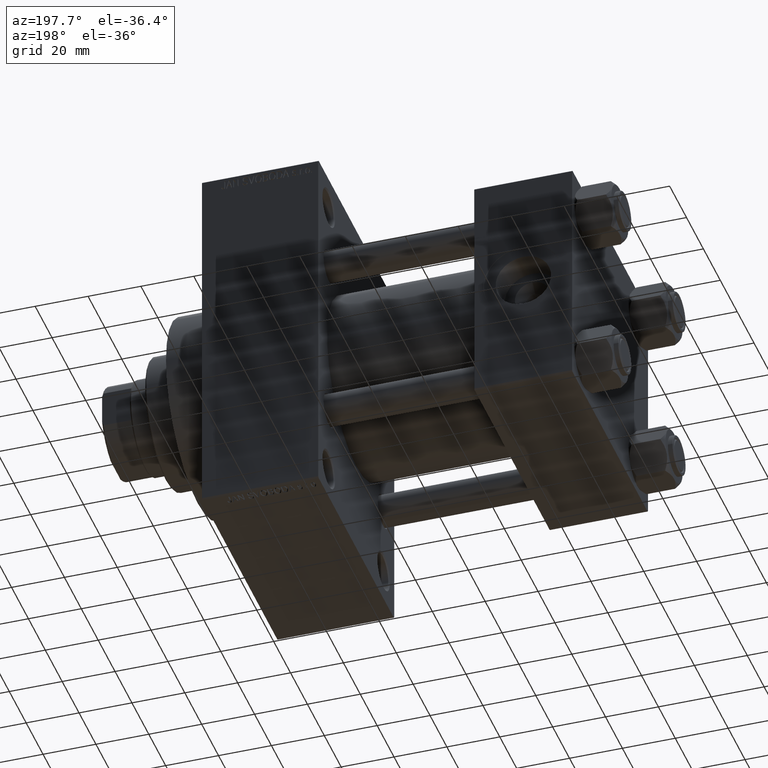
[diagram: clean part render]
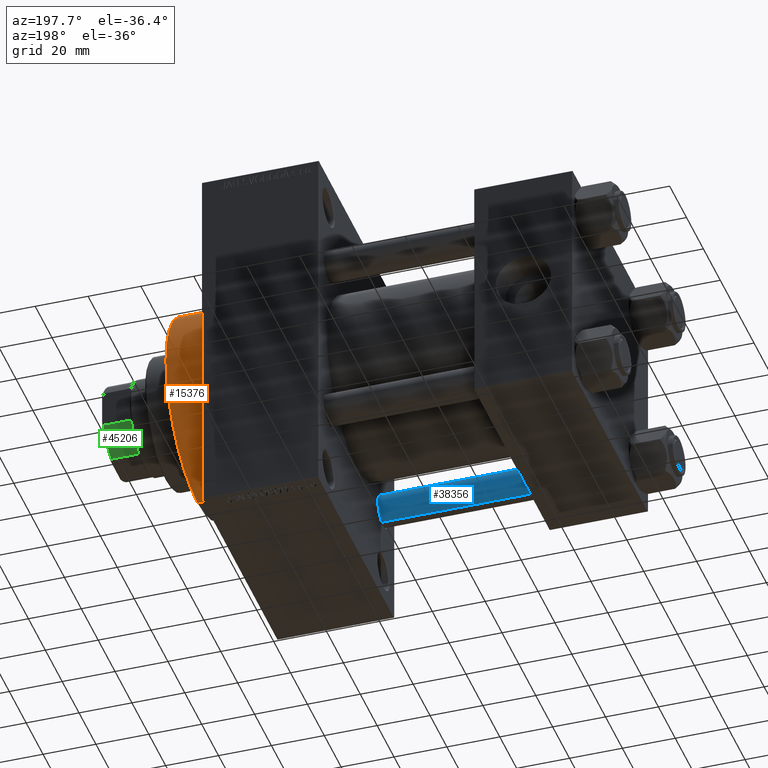
[diagram: same view with three faces highlighted in distinct colors, each labeled with its STEP entity id]
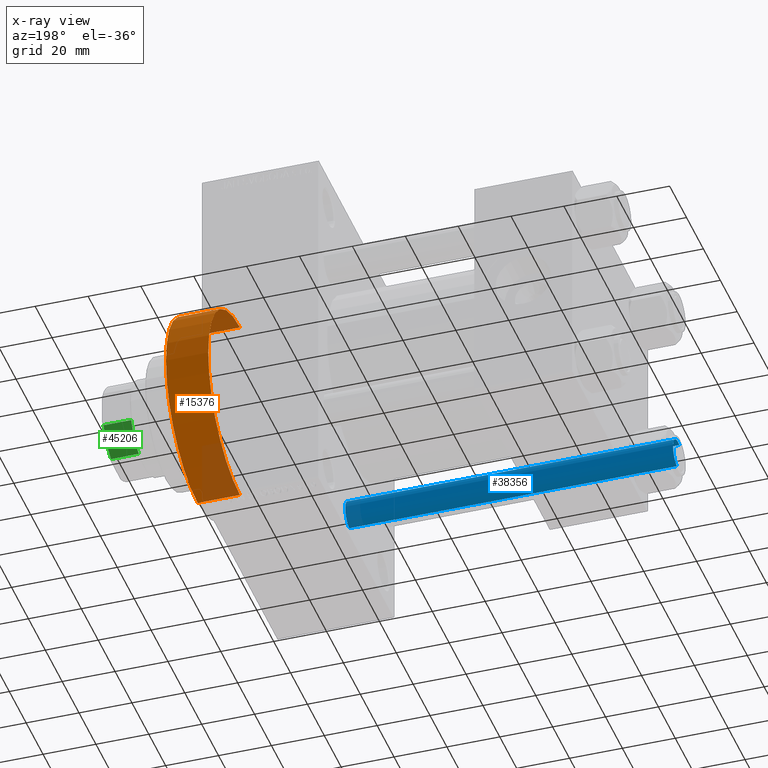
[diagram: x-ray of the same camera — body ghosted, the three highlighted faces saturated]
A machine part, auxiliary view with three faces highlighted in distinct colors.
The next image is the same camera in x-ray (body ghosted, the three faces saturated) — at least one of them is partly hidden behind the body in this view.
Their STEP definitions:

[orange] entity #15376 — the highlighted cylindrical surface (partial cylindrical patch) has radius 37.5 mm, axis along (-1, -0, -0).
#1400 = DIRECTION ( 'NONE',  ( -1.000000000000000000, -0.000000000000000000, -0.000000000000000000 ) ) ;
#1558 = ORIENTED_EDGE ( 'NONE', *, *, #19157, .F. ) ;
#3736 = FACE_OUTER_BOUND ( 'NONE', #13846, .T. ) ;
#3810 = CARTESIAN_POINT ( 'NONE',  ( 156.0000000000000284, 0.000000000000000000, 37.50000000000000711 ) ) ;
#5068 = VERTEX_POINT ( 'NONE', #40369 ) ;
#5835 = CIRCLE ( 'NONE', #22616, 37.50000000000000711 ) ;
#6279 = CARTESIAN_POINT ( 'NONE',  ( 140.0000000000000000, 0.000000000000000000, 0.000000000000000000 ) ) ;
#6836 = DIRECTION ( 'NONE',  ( -1.000000000000000000, -0.000000000000000000, -0.000000000000000000 ) ) ;
#7651 = VECTOR ( 'NONE', #1400, 1000.000000000000000 ) ;
#8148 = ORIENTED_EDGE ( 'NONE', *, *, #39528, .T. ) ;
#9336 = CARTESIAN_POINT ( 'NONE',  ( 140.0000000000000000, 4.592425496802575156E-15, -37.50000000000000711 ) ) ;
#10544 = LINE ( 'NONE', #36091, #7651 ) ;
#12725 = DIRECTION ( 'NONE',  ( 0.000000000000000000, 0.000000000000000000, -1.000000000000000000 ) ) ;
#13447 = VERTEX_POINT ( 'NONE', #16086 ) ;
#13482 = AXIS2_PLACEMENT_3D ( 'NONE', #6279, #20137, #12725 ) ;
#13619 = VECTOR ( 'NONE', #44904, 1000.000000000000000 ) ;
#13797 = VERTEX_POINT ( 'NONE', #9336 ) ;
#13846 = EDGE_LOOP ( 'NONE', ( #1558, #8148, #22455, #30009 ) ) ;
#15376 = ADVANCED_FACE ( 'NONE', ( #3736 ), #25471, .T. ) ;
#16086 = CARTESIAN_POINT ( 'NONE',  ( 140.0000000000000000, 0.000000000000000000, 37.50000000000000711 ) ) ;
#19157 = EDGE_CURVE ( 'NONE', #5068, #20284, #5835, .T. ) ;
#19582 = CARTESIAN_POINT ( 'NONE',  ( 156.0000000000000284, 0.000000000000000000, 0.000000000000000000 ) ) ;
#20068 = LINE ( 'NONE', #45837, #13619 ) ;
#20137 = DIRECTION ( 'NONE',  ( 1.000000000000000000, 0.000000000000000000, 0.000000000000000000 ) ) ;
#20284 = VERTEX_POINT ( 'NONE', #3810 ) ;
#21410 = DIRECTION ( 'NONE',  ( 0.000000000000000000, 0.000000000000000000, 1.000000000000000000 ) ) ;
#22455 = ORIENTED_EDGE ( 'NONE', *, *, #28113, .T. ) ;
#22616 = AXIS2_PLACEMENT_3D ( 'NONE', #19582, #37487, #45590 ) ;
#25471 = CYLINDRICAL_SURFACE ( 'NONE', #32451, 37.50000000000000711 ) ;
#28113 = EDGE_CURVE ( 'NONE', #13797, #13447, #34852, .T. ) ;
#30009 = ORIENTED_EDGE ( 'NONE', *, *, #35922, .F. ) ;
#32152 = CARTESIAN_POINT ( 'NONE',  ( 156.0000000000000284, 0.000000000000000000, 0.000000000000000000 ) ) ;
#32451 = AXIS2_PLACEMENT_3D ( 'NONE', #32152, #6836, #21410 ) ;
#34852 = CIRCLE ( 'NONE', #13482, 37.50000000000000711 ) ;
#35922 = EDGE_CURVE ( 'NONE', #20284, #13447, #20068, .T. ) ;
#36091 = CARTESIAN_POINT ( 'NONE',  ( 156.0000000000000284, 4.592425496802575156E-15, -37.50000000000000711 ) ) ;
#37487 = DIRECTION ( 'NONE',  ( 1.000000000000000000, 0.000000000000000000, 0.000000000000000000 ) ) ;
#39528 = EDGE_CURVE ( 'NONE', #5068, #13797, #10544, .T. ) ;
#40369 = CARTESIAN_POINT ( 'NONE',  ( 156.0000000000000284, 4.592425496802575156E-15, -37.50000000000000711 ) ) ;
#44904 = DIRECTION ( 'NONE',  ( -1.000000000000000000, -0.000000000000000000, -0.000000000000000000 ) ) ;
#45590 = DIRECTION ( 'NONE',  ( 0.000000000000000000, 0.000000000000000000, -1.000000000000000000 ) ) ;
#45837 = CARTESIAN_POINT ( 'NONE',  ( 156.0000000000000284, 0.000000000000000000, 37.50000000000000711 ) ) ;

[blue] entity #38356 — the highlighted cylindrical surface (edge-blend (fillet) strip) has radius 6 mm, axis along (-1, 0, 0).
#1490 = DIRECTION ( 'NONE',  ( -0.000000000000000000, -0.000000000000000000, 1.000000000000000000 ) ) ;
#1529 = VERTEX_POINT ( 'NONE', #5859 ) ;
#1657 = EDGE_CURVE ( 'NONE', #21189, #8514, #6330, .T. ) ;
#2289 = EDGE_CURVE ( 'NONE', #31427, #1529, #16494, .T. ) ;
#3182 = VECTOR ( 'NONE', #12676, 1000.000000000000000 ) ;
#5859 = CARTESIAN_POINT ( 'NONE',  ( 6.000000000000000888, 7.347880794884120722E-16, 0.4999999999999865663 ) ) ;
#6330 = LINE ( 'NONE', #20904, #31313 ) ;
#7357 = ORIENTED_EDGE ( 'NONE', *, *, #1657, .T. ) ;
#8514 = VERTEX_POINT ( 'NONE', #35728 ) ;
#12216 = DIRECTION ( 'NONE',  ( 1.000000000000000000, 0.000000000000000000, 0.000000000000000000 ) ) ;
#12395 = CIRCLE ( 'NONE', #22283, 6.000000000000000888 ) ;
#12676 = DIRECTION ( 'NONE',  ( -0.000000000000000000, -0.000000000000000000, -1.000000000000000000 ) ) ;
#15251 = AXIS2_PLACEMENT_3D ( 'NONE', #39301, #21409, #21648 ) ;
#15615 = ORIENTED_EDGE ( 'NONE', *, *, #2289, .F. ) ;
#16494 = LINE ( 'NONE', #26795, #3182 ) ;
#16739 = CYLINDRICAL_SURFACE ( 'NONE', #19823, 6.000000000000000888 ) ;
#19453 = CARTESIAN_POINT ( 'NONE',  ( 0.000000000000000000, 0.000000000000000000, 125.0000000000000000 ) ) ;
#19823 = AXIS2_PLACEMENT_3D ( 'NONE', #19453, #42296, #27741 ) ;
#19830 = CARTESIAN_POINT ( 'NONE',  ( 6.000000000000000888, 7.347880794884120722E-16, 124.5000000000000000 ) ) ;
#20321 = CARTESIAN_POINT ( 'NONE',  ( 0.000000000000000000, 0.000000000000000000, 0.4999999999999865663 ) ) ;
#20904 = CARTESIAN_POINT ( 'NONE',  ( -6.000000000000000888, 0.000000000000000000, 125.0000000000000000 ) ) ;
#21189 = VERTEX_POINT ( 'NONE', #21880 ) ;
#21409 = DIRECTION ( 'NONE',  ( 0.000000000000000000, 0.000000000000000000, -1.000000000000000000 ) ) ;
#21648 = DIRECTION ( 'NONE',  ( 1.000000000000000000, 0.000000000000000000, 0.000000000000000000 ) ) ;
#21880 = CARTESIAN_POINT ( 'NONE',  ( -6.000000000000000888, 0.000000000000000000, 124.5000000000000000 ) ) ;
#22283 = AXIS2_PLACEMENT_3D ( 'NONE', #20321, #1490, #12216 ) ;
#25859 = EDGE_LOOP ( 'NONE', ( #15615, #31876, #7357, #28080 ) ) ;
#26795 = CARTESIAN_POINT ( 'NONE',  ( 6.000000000000000888, 7.347880794884120722E-16, 125.0000000000000000 ) ) ;
#27741 = DIRECTION ( 'NONE',  ( -1.000000000000000000, 0.000000000000000000, 0.000000000000000000 ) ) ;
#28080 = ORIENTED_EDGE ( 'NONE', *, *, #43600, .T. ) ;
#31313 = VECTOR ( 'NONE', #35458, 1000.000000000000000 ) ;
#31427 = VERTEX_POINT ( 'NONE', #19830 ) ;
#31876 = ORIENTED_EDGE ( 'NONE', *, *, #38985, .T. ) ;
#33546 = CIRCLE ( 'NONE', #15251, 6.000000000000000888 ) ;
#35458 = DIRECTION ( 'NONE',  ( -0.000000000000000000, -0.000000000000000000, -1.000000000000000000 ) ) ;
#35728 = CARTESIAN_POINT ( 'NONE',  ( -6.000000000000000888, 0.000000000000000000, 0.4999999999999865663 ) ) ;
#38356 = ADVANCED_FACE ( 'NONE', ( #43008 ), #16739, .T. ) ;
#38985 = EDGE_CURVE ( 'NONE', #31427, #21189, #33546, .T. ) ;
#39301 = CARTESIAN_POINT ( 'NONE',  ( 0.000000000000000000, 0.000000000000000000, 124.5000000000000000 ) ) ;
#42296 = DIRECTION ( 'NONE',  ( -0.000000000000000000, -0.000000000000000000, -1.000000000000000000 ) ) ;
#43008 = FACE_OUTER_BOUND ( 'NONE', #25859, .T. ) ;
#43600 = EDGE_CURVE ( 'NONE', #8514, #1529, #12395, .T. ) ;

[green] entity #45206 — the highlighted cylindrical surface (partial cylindrical patch) has radius 17.5 mm, axis along (1, 0, 0).
#454 = ORIENTED_EDGE ( 'NONE', *, *, #42154, .T. ) ;
#1171 = ORIENTED_EDGE ( 'NONE', *, *, #40918, .T. ) ;
#1958 = DIRECTION ( 'NONE',  ( -0.000000000000000000, -0.000000000000000000, -1.000000000000000000 ) ) ;
#4008 = DIRECTION ( 'NONE',  ( -0.000000000000000000, -0.000000000000000000, 1.000000000000000000 ) ) ;
#4978 = CARTESIAN_POINT ( 'NONE',  ( -15.99999999999999645, 7.088723439378924240, 139.0000000000000000 ) ) ;
#5506 = AXIS2_PLACEMENT_3D ( 'NONE', #8630, #1958, #31077 ) ;
#6285 = CARTESIAN_POINT ( 'NONE',  ( -7.088723439378915359, 16.00000000000000000, 149.4999999999999716 ) ) ;
#7008 = CYLINDRICAL_SURFACE ( 'NONE', #10108, 17.50000000000000000 ) ;
#8630 = CARTESIAN_POINT ( 'NONE',  ( 0.000000000000000000, 0.000000000000000000, 149.4999999999999716 ) ) ;
#8831 = CARTESIAN_POINT ( 'NONE',  ( -7.088723439378916247, 16.00000000000000000, 139.0000000000000000 ) ) ;
#9215 = LINE ( 'NONE', #13985, #24502 ) ;
#10108 = AXIS2_PLACEMENT_3D ( 'NONE', #21583, #28983, #43529 ) ;
#10405 = DIRECTION ( 'NONE',  ( 1.000000000000000000, 0.000000000000000000, 0.000000000000000000 ) ) ;
#10766 = VECTOR ( 'NONE', #4008, 1000.000000000000000 ) ;
#10934 = CARTESIAN_POINT ( 'NONE',  ( -15.99999999999999645, 7.088723439378923352, -0.001000000000001000089 ) ) ;
#13985 = CARTESIAN_POINT ( 'NONE',  ( -7.088723439378915359, 16.00000000000000000, -0.001000000000001000089 ) ) ;
#14404 = FACE_OUTER_BOUND ( 'NONE', #34645, .T. ) ;
#17650 = CIRCLE ( 'NONE', #44317, 17.50000000000000000 ) ;
#20072 = VERTEX_POINT ( 'NONE', #8831 ) ;
#21583 = CARTESIAN_POINT ( 'NONE',  ( 0.000000000000000000, 0.000000000000000000, -0.001000000000001000089 ) ) ;
#24502 = VECTOR ( 'NONE', #32140, 1000.000000000000000 ) ;
#24986 = DIRECTION ( 'NONE',  ( 0.000000000000000000, 0.000000000000000000, 1.000000000000000000 ) ) ;
#25369 = CIRCLE ( 'NONE', #5506, 17.50000000000000000 ) ;
#28910 = VERTEX_POINT ( 'NONE', #6285 ) ;
#28983 = DIRECTION ( 'NONE',  ( -0.000000000000000000, -0.000000000000000000, 1.000000000000000000 ) ) ;
#31077 = DIRECTION ( 'NONE',  ( 1.000000000000000000, 1.776356839400250465E-15, 0.000000000000000000 ) ) ;
#32140 = DIRECTION ( 'NONE',  ( -0.000000000000000000, -0.000000000000000000, 1.000000000000000000 ) ) ;
#32789 = CARTESIAN_POINT ( 'NONE',  ( -15.99999999999999645, 7.088723439378923352, 149.4999999999999716 ) ) ;
#32891 = LINE ( 'NONE', #10934, #10766 ) ;
#34645 = EDGE_LOOP ( 'NONE', ( #1171, #37013, #45207, #454 ) ) ;
#36263 = VERTEX_POINT ( 'NONE', #4978 ) ;
#37013 = ORIENTED_EDGE ( 'NONE', *, *, #43622, .T. ) ;
#39533 = CARTESIAN_POINT ( 'NONE',  ( 0.000000000000000000, 0.000000000000000000, 139.0000000000000000 ) ) ;
#40918 = EDGE_CURVE ( 'NONE', #36263, #42717, #32891, .T. ) ;
#42134 = EDGE_CURVE ( 'NONE', #20072, #28910, #9215, .T. ) ;
#42154 = EDGE_CURVE ( 'NONE', #20072, #36263, #17650, .T. ) ;
#42717 = VERTEX_POINT ( 'NONE', #32789 ) ;
#43529 = DIRECTION ( 'NONE',  ( 1.000000000000000000, 0.000000000000000000, 0.000000000000000000 ) ) ;
#43622 = EDGE_CURVE ( 'NONE', #42717, #28910, #25369, .T. ) ;
#44317 = AXIS2_PLACEMENT_3D ( 'NONE', #39533, #24986, #10405 ) ;
#45206 = ADVANCED_FACE ( 'NONE', ( #14404 ), #7008, .T. ) ;
#45207 = ORIENTED_EDGE ( 'NONE', *, *, #42134, .F. ) ;